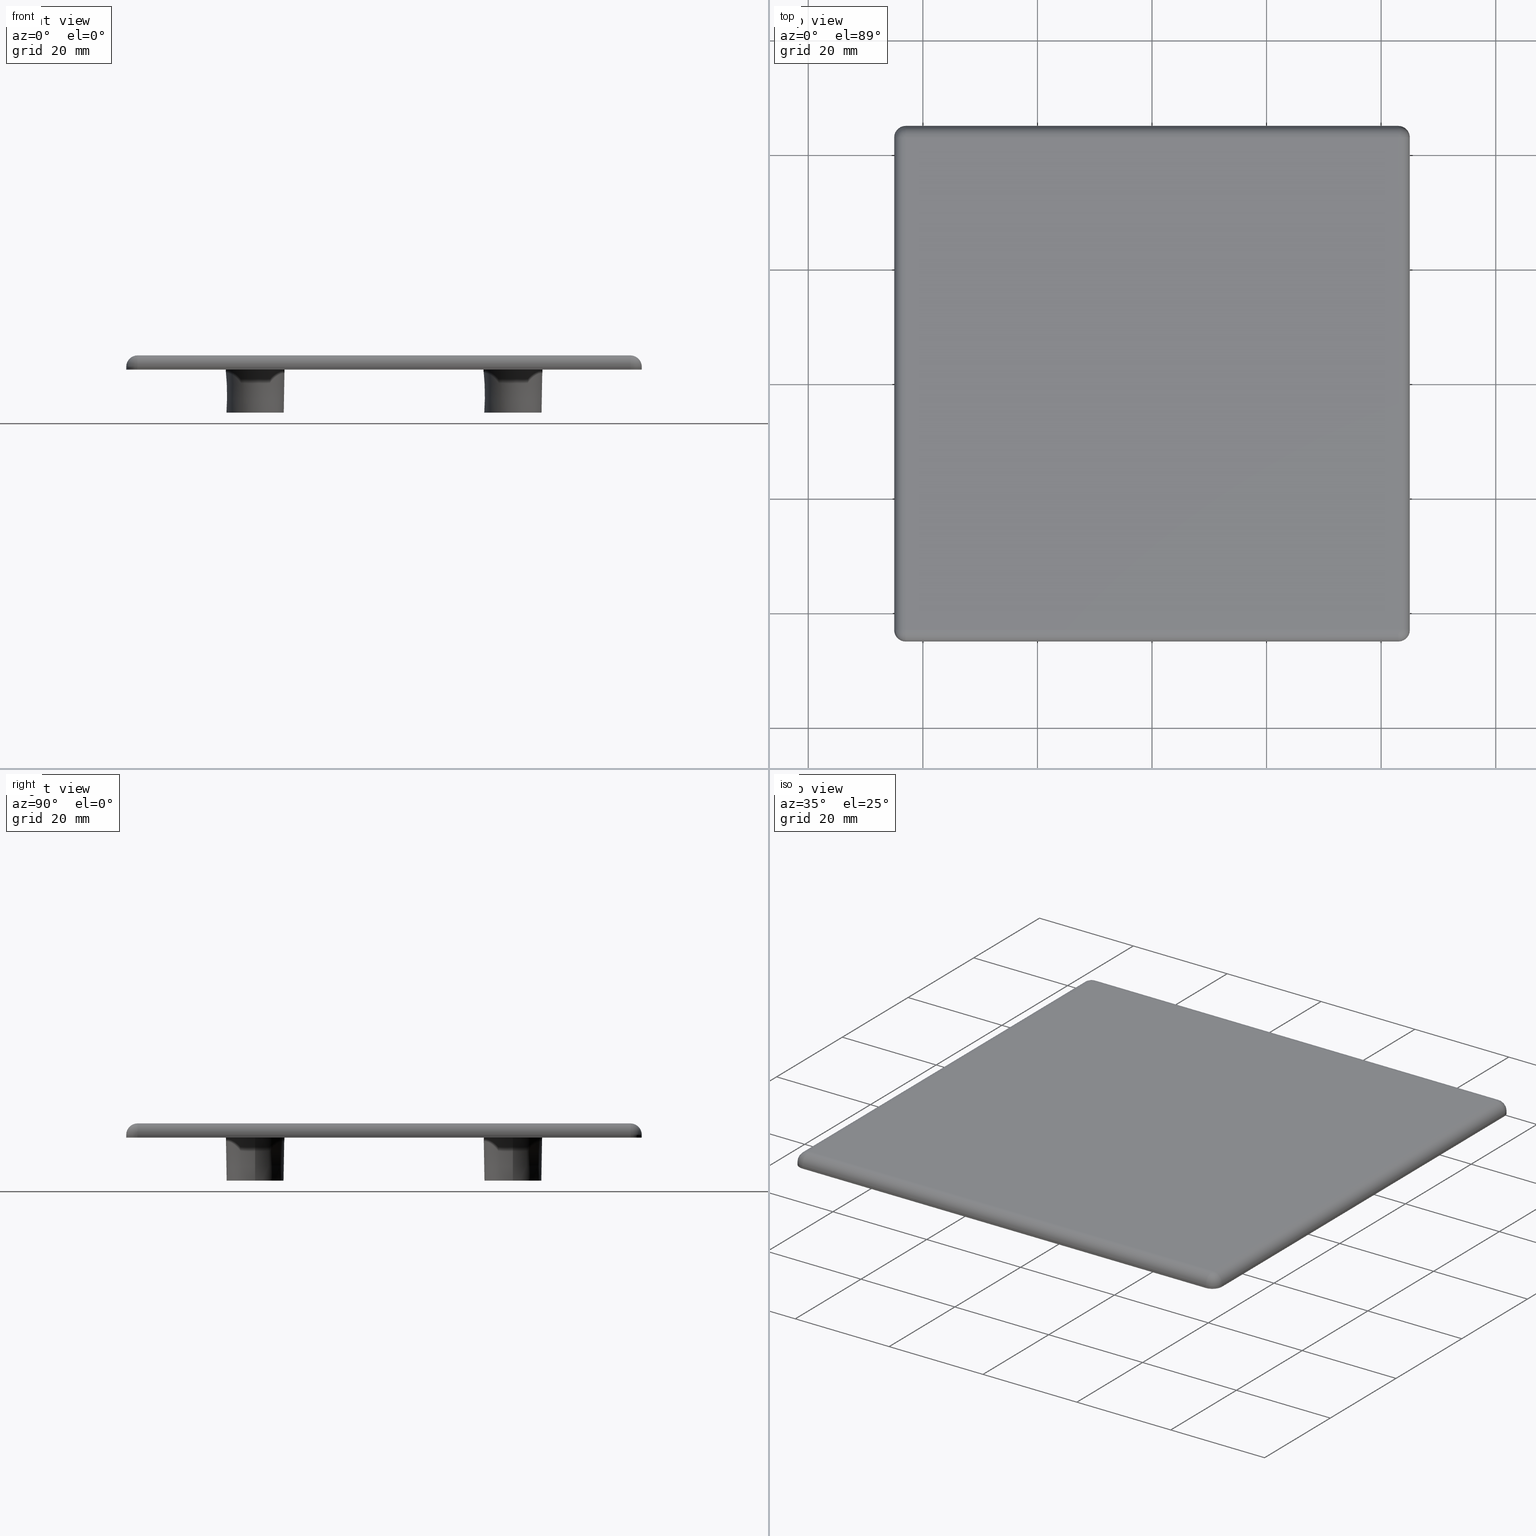
[diagram: canonical four-view strip — front | top / right | iso, engineering-drawing reading convention]
A machine part, canonical four-view strip (front | top / right | iso — engineering-drawing reading convention). The complete STEP part file that produces these views, byte-faithful:
ISO-10303-21;
HEADER;
/* Generated by software containing ST-Developer
 * from STEP Tools, Inc. (www.steptools.com) 
 */

FILE_DESCRIPTION(
/* description */ ('TAPPO 90X90 NERO - CAVA 10'),
/* implementation_level */ '2;1');

FILE_NAME(
/* name */ 
'Q:\\Catalogo\\2_Accessori Dierre\\Per Download Web e catalogo cartace
o\\CATALOGO TAPPI DI CHIUSURA\\PAGINA 98\\DTPTR0000075-.stp',
/* time_stamp */ '2019-07-16T09:31:55+02:00',
/* author */ ('fzagni'),
/* organization */ (''),
/* preprocessor_version */ 'ST-DEVELOPER v17.2',
/* originating_system */ 'Autodesk Inventor 2019',
/* authorisation */ '');

FILE_SCHEMA (('AUTOMOTIVE_DESIGN { 1 0 10303 214 3 1 1 }'));
ENDSEC;

DATA;
#10=MECHANICAL_DESIGN_GEOMETRIC_PRESENTATION_REPRESENTATION('',(#13),#853);
#11=SHAPE_REPRESENTATION_RELATIONSHIP('SRR','None',#860,#12);
#12=ADVANCED_BREP_SHAPE_REPRESENTATION('',(#14),#852);
#13=STYLED_ITEM('',(#869),#14);
#14=MANIFOLD_SOLID_BREP('Solido1',#471);
#15=CYLINDRICAL_SURFACE('',#532,2.);
#16=CYLINDRICAL_SURFACE('',#537,2.);
#17=CYLINDRICAL_SURFACE('',#542,2.);
#18=CYLINDRICAL_SURFACE('',#543,2.);
#19=CYLINDRICAL_SURFACE('',#548,2.);
#20=CYLINDRICAL_SURFACE('',#549,2.);
#21=CYLINDRICAL_SURFACE('',#550,2.);
#22=CYLINDRICAL_SURFACE('',#551,2.);
#23=SPHERICAL_SURFACE('',#528,2.);
#24=SPHERICAL_SURFACE('',#533,2.);
#25=SPHERICAL_SURFACE('',#538,2.);
#26=SPHERICAL_SURFACE('',#544,2.);
#27=FACE_BOUND('',#86,.T.);
#28=FACE_BOUND('',#90,.T.);
#29=FACE_BOUND('',#94,.T.);
#30=FACE_BOUND('',#96,.T.);
#31=FACE_BOUND('',#97,.T.);
#32=FACE_BOUND('',#98,.T.);
#33=FACE_BOUND('',#99,.T.);
#34=FACE_BOUND('',#105,.T.);
#35=PLANE('',#497);
#36=PLANE('',#504);
#37=PLANE('',#511);
#38=PLANE('',#512);
#39=PLANE('',#518);
#40=PLANE('',#519);
#41=PLANE('',#525);
#42=PLANE('',#526);
#43=PLANE('',#527);
#44=PLANE('',#552);
#45=PLANE('',#553);
#46=PLANE('',#554);
#47=PLANE('',#555);
#48=PLANE('',#556);
#49=FACE_OUTER_BOUND('',#83,.T.);
#50=FACE_OUTER_BOUND('',#84,.T.);
#51=FACE_OUTER_BOUND('',#85,.T.);
#52=FACE_OUTER_BOUND('',#87,.T.);
#53=FACE_OUTER_BOUND('',#88,.T.);
#54=FACE_OUTER_BOUND('',#89,.T.);
#55=FACE_OUTER_BOUND('',#91,.T.);
#56=FACE_OUTER_BOUND('',#92,.T.);
#57=FACE_OUTER_BOUND('',#93,.T.);
#58=FACE_OUTER_BOUND('',#95,.T.);
#59=FACE_OUTER_BOUND('',#100,.T.);
#60=FACE_OUTER_BOUND('',#101,.T.);
#61=FACE_OUTER_BOUND('',#102,.T.);
#62=FACE_OUTER_BOUND('',#103,.T.);
#63=FACE_OUTER_BOUND('',#104,.T.);
#64=FACE_OUTER_BOUND('',#106,.T.);
#65=FACE_OUTER_BOUND('',#107,.T.);
#66=FACE_OUTER_BOUND('',#108,.T.);
#67=FACE_OUTER_BOUND('',#109,.T.);
#68=FACE_OUTER_BOUND('',#110,.T.);
#69=FACE_OUTER_BOUND('',#111,.T.);
#70=FACE_OUTER_BOUND('',#112,.T.);
#71=FACE_OUTER_BOUND('',#113,.T.);
#72=FACE_OUTER_BOUND('',#114,.T.);
#73=FACE_OUTER_BOUND('',#115,.T.);
#74=FACE_OUTER_BOUND('',#116,.T.);
#75=FACE_OUTER_BOUND('',#117,.T.);
#76=FACE_OUTER_BOUND('',#118,.T.);
#77=FACE_OUTER_BOUND('',#119,.T.);
#78=FACE_OUTER_BOUND('',#120,.T.);
#79=FACE_OUTER_BOUND('',#121,.T.);
#80=FACE_OUTER_BOUND('',#122,.T.);
#81=FACE_OUTER_BOUND('',#123,.T.);
#82=FACE_OUTER_BOUND('',#124,.T.);
#83=EDGE_LOOP('',(#309,#310,#311,#312));
#84=EDGE_LOOP('',(#313,#314,#315,#316));
#85=EDGE_LOOP('',(#317));
#86=EDGE_LOOP('',(#318));
#87=EDGE_LOOP('',(#319,#320,#321,#322));
#88=EDGE_LOOP('',(#323,#324,#325,#326));
#89=EDGE_LOOP('',(#327));
#90=EDGE_LOOP('',(#328));
#91=EDGE_LOOP('',(#329,#330,#331,#332));
#92=EDGE_LOOP('',(#333,#334,#335,#336));
#93=EDGE_LOOP('',(#337));
#94=EDGE_LOOP('',(#338));
#95=EDGE_LOOP('',(#339,#340,#341,#342,#343,#344,#345,#346));
#96=EDGE_LOOP('',(#347));
#97=EDGE_LOOP('',(#348));
#98=EDGE_LOOP('',(#349));
#99=EDGE_LOOP('',(#350));
#100=EDGE_LOOP('',(#351));
#101=EDGE_LOOP('',(#352));
#102=EDGE_LOOP('',(#353,#354,#355,#356));
#103=EDGE_LOOP('',(#357,#358,#359,#360));
#104=EDGE_LOOP('',(#361));
#105=EDGE_LOOP('',(#362));
#106=EDGE_LOOP('',(#363));
#107=EDGE_LOOP('',(#364,#365,#366,#367));
#108=EDGE_LOOP('',(#368,#369,#370));
#109=EDGE_LOOP('',(#371,#372,#373,#374));
#110=EDGE_LOOP('',(#375,#376,#377));
#111=EDGE_LOOP('',(#378,#379,#380,#381));
#112=EDGE_LOOP('',(#382,#383,#384));
#113=EDGE_LOOP('',(#385,#386,#387,#388));
#114=EDGE_LOOP('',(#389,#390,#391,#392));
#115=EDGE_LOOP('',(#393,#394,#395));
#116=EDGE_LOOP('',(#396,#397,#398,#399));
#117=EDGE_LOOP('',(#400,#401,#402,#403));
#118=EDGE_LOOP('',(#404,#405,#406,#407));
#119=EDGE_LOOP('',(#408,#409,#410,#411));
#120=EDGE_LOOP('',(#412,#413,#414,#415));
#121=EDGE_LOOP('',(#416,#417,#418,#419));
#122=EDGE_LOOP('',(#420));
#123=EDGE_LOOP('',(#421,#422,#423,#424));
#124=EDGE_LOOP('',(#425,#426,#427,#428));
#125=LINE('',#724,#153);
#126=LINE('',#730,#154);
#127=LINE('',#737,#155);
#128=LINE('',#743,#156);
#129=LINE('',#750,#157);
#130=LINE('',#756,#158);
#131=LINE('',#764,#159);
#132=LINE('',#768,#160);
#133=LINE('',#772,#161);
#134=LINE('',#775,#162);
#135=LINE('',#784,#163);
#136=LINE('',#788,#164);
#137=LINE('',#795,#165);
#138=LINE('',#797,#166);
#139=LINE('',#799,#167);
#140=LINE('',#800,#168);
#141=LINE('',#808,#169);
#142=LINE('',#809,#170);
#143=LINE('',#817,#171);
#144=LINE('',#818,#172);
#145=LINE('',#826,#173);
#146=LINE('',#827,#174);
#147=LINE('',#829,#175);
#148=LINE('',#837,#176);
#149=LINE('',#838,#177);
#150=LINE('',#840,#178);
#151=LINE('',#842,#179);
#152=LINE('',#844,#180);
#153=VECTOR('',#563,4.2);
#154=VECTOR('',#570,5.);
#155=VECTOR('',#579,4.2);
#156=VECTOR('',#586,5.);
#157=VECTOR('',#595,4.2);
#158=VECTOR('',#602,5.);
#159=VECTOR('',#611,10.);
#160=VECTOR('',#614,10.);
#161=VECTOR('',#617,10.);
#162=VECTOR('',#620,10.);
#163=VECTOR('',#631,4.2);
#164=VECTOR('',#636,5.);
#165=VECTOR('',#645,10.);
#166=VECTOR('',#646,10.);
#167=VECTOR('',#647,10.);
#168=VECTOR('',#648,10.);
#169=VECTOR('',#659,10.);
#170=VECTOR('',#660,10.);
#171=VECTOR('',#671,10.);
#172=VECTOR('',#672,10.);
#173=VECTOR('',#683,10.);
#174=VECTOR('',#684,10.);
#175=VECTOR('',#687,10.);
#176=VECTOR('',#698,10.);
#177=VECTOR('',#699,10.);
#178=VECTOR('',#702,10.);
#179=VECTOR('',#705,10.);
#180=VECTOR('',#708,10.);
#181=CIRCLE('',#492,4.2);
#182=CIRCLE('',#493,4.06908701303837);
#183=CIRCLE('',#495,5.13091298696163);
#184=CIRCLE('',#496,5.);
#185=CIRCLE('',#499,4.2);
#186=CIRCLE('',#500,4.06908701303837);
#187=CIRCLE('',#502,5.13091298696163);
#188=CIRCLE('',#503,5.);
#189=CIRCLE('',#506,4.2);
#190=CIRCLE('',#507,4.06908701303837);
#191=CIRCLE('',#509,5.13091298696163);
#192=CIRCLE('',#510,5.);
#193=CIRCLE('',#513,2.);
#194=CIRCLE('',#514,2.);
#195=CIRCLE('',#515,2.);
#196=CIRCLE('',#516,2.);
#197=CIRCLE('',#517,5.13091298696163);
#198=CIRCLE('',#521,4.2);
#199=CIRCLE('',#522,4.06908701303837);
#200=CIRCLE('',#524,5.);
#201=CIRCLE('',#529,2.);
#202=CIRCLE('',#530,2.);
#203=CIRCLE('',#531,2.);
#204=CIRCLE('',#534,1.99999999999999);
#205=CIRCLE('',#535,2.);
#206=CIRCLE('',#536,2.);
#207=CIRCLE('',#539,2.00000000000001);
#208=CIRCLE('',#540,2.);
#209=CIRCLE('',#541,2.);
#210=CIRCLE('',#545,2.);
#211=CIRCLE('',#546,2.);
#212=CIRCLE('',#547,2.);
#213=VERTEX_POINT('',#721);
#214=VERTEX_POINT('',#723);
#215=VERTEX_POINT('',#727);
#216=VERTEX_POINT('',#729);
#217=VERTEX_POINT('',#734);
#218=VERTEX_POINT('',#736);
#219=VERTEX_POINT('',#740);
#220=VERTEX_POINT('',#742);
#221=VERTEX_POINT('',#747);
#222=VERTEX_POINT('',#749);
#223=VERTEX_POINT('',#753);
#224=VERTEX_POINT('',#755);
#225=VERTEX_POINT('',#760);
#226=VERTEX_POINT('',#761);
#227=VERTEX_POINT('',#763);
#228=VERTEX_POINT('',#765);
#229=VERTEX_POINT('',#767);
#230=VERTEX_POINT('',#769);
#231=VERTEX_POINT('',#771);
#232=VERTEX_POINT('',#773);
#233=VERTEX_POINT('',#776);
#234=VERTEX_POINT('',#781);
#235=VERTEX_POINT('',#783);
#236=VERTEX_POINT('',#787);
#237=VERTEX_POINT('',#793);
#238=VERTEX_POINT('',#794);
#239=VERTEX_POINT('',#796);
#240=VERTEX_POINT('',#798);
#241=VERTEX_POINT('',#802);
#242=VERTEX_POINT('',#804);
#243=VERTEX_POINT('',#811);
#244=VERTEX_POINT('',#813);
#245=VERTEX_POINT('',#820);
#246=VERTEX_POINT('',#822);
#247=VERTEX_POINT('',#831);
#248=VERTEX_POINT('',#833);
#249=EDGE_CURVE('',#213,#213,#181,.T.);
#250=EDGE_CURVE('',#213,#214,#125,.T.);
#251=EDGE_CURVE('',#214,#214,#182,.T.);
#252=EDGE_CURVE('',#215,#215,#183,.T.);
#253=EDGE_CURVE('',#215,#216,#126,.T.);
#254=EDGE_CURVE('',#216,#216,#184,.T.);
#255=EDGE_CURVE('',#217,#217,#185,.T.);
#256=EDGE_CURVE('',#217,#218,#127,.T.);
#257=EDGE_CURVE('',#218,#218,#186,.T.);
#258=EDGE_CURVE('',#219,#219,#187,.T.);
#259=EDGE_CURVE('',#219,#220,#128,.T.);
#260=EDGE_CURVE('',#220,#220,#188,.T.);
#261=EDGE_CURVE('',#221,#221,#189,.T.);
#262=EDGE_CURVE('',#221,#222,#129,.T.);
#263=EDGE_CURVE('',#222,#222,#190,.T.);
#264=EDGE_CURVE('',#223,#223,#191,.T.);
#265=EDGE_CURVE('',#223,#224,#130,.T.);
#266=EDGE_CURVE('',#224,#224,#192,.T.);
#267=EDGE_CURVE('',#225,#226,#193,.T.);
#268=EDGE_CURVE('',#225,#227,#131,.T.);
#269=EDGE_CURVE('',#228,#227,#194,.T.);
#270=EDGE_CURVE('',#228,#229,#132,.T.);
#271=EDGE_CURVE('',#230,#229,#195,.T.);
#272=EDGE_CURVE('',#230,#231,#133,.T.);
#273=EDGE_CURVE('',#232,#231,#196,.T.);
#274=EDGE_CURVE('',#232,#226,#134,.T.);
#275=EDGE_CURVE('',#233,#233,#197,.T.);
#276=EDGE_CURVE('',#234,#234,#198,.T.);
#277=EDGE_CURVE('',#234,#235,#135,.T.);
#278=EDGE_CURVE('',#235,#235,#199,.T.);
#279=EDGE_CURVE('',#233,#236,#136,.T.);
#280=EDGE_CURVE('',#236,#236,#200,.T.);
#281=EDGE_CURVE('',#237,#238,#137,.T.);
#282=EDGE_CURVE('',#239,#237,#138,.T.);
#283=EDGE_CURVE('',#240,#239,#139,.T.);
#284=EDGE_CURVE('',#238,#240,#140,.T.);
#285=EDGE_CURVE('',#241,#237,#201,.F.);
#286=EDGE_CURVE('',#242,#241,#202,.F.);
#287=EDGE_CURVE('',#237,#242,#203,.F.);
#288=EDGE_CURVE('',#226,#242,#141,.T.);
#289=EDGE_CURVE('',#241,#225,#142,.T.);
#290=EDGE_CURVE('',#243,#239,#204,.F.);
#291=EDGE_CURVE('',#244,#243,#205,.F.);
#292=EDGE_CURVE('',#239,#244,#206,.F.);
#293=EDGE_CURVE('',#231,#244,#143,.T.);
#294=EDGE_CURVE('',#243,#232,#144,.T.);
#295=EDGE_CURVE('',#245,#238,#207,.F.);
#296=EDGE_CURVE('',#246,#245,#208,.F.);
#297=EDGE_CURVE('',#238,#246,#209,.F.);
#298=EDGE_CURVE('',#227,#246,#145,.T.);
#299=EDGE_CURVE('',#245,#228,#146,.T.);
#300=EDGE_CURVE('',#246,#241,#147,.T.);
#301=EDGE_CURVE('',#247,#240,#210,.F.);
#302=EDGE_CURVE('',#248,#247,#211,.F.);
#303=EDGE_CURVE('',#240,#248,#212,.F.);
#304=EDGE_CURVE('',#229,#248,#148,.T.);
#305=EDGE_CURVE('',#247,#230,#149,.T.);
#306=EDGE_CURVE('',#248,#245,#150,.T.);
#307=EDGE_CURVE('',#244,#247,#151,.T.);
#308=EDGE_CURVE('',#242,#243,#152,.T.);
#309=ORIENTED_EDGE('',*,*,#249,.F.);
#310=ORIENTED_EDGE('',*,*,#250,.T.);
#311=ORIENTED_EDGE('',*,*,#251,.F.);
#312=ORIENTED_EDGE('',*,*,#250,.F.);
#313=ORIENTED_EDGE('',*,*,#252,.F.);
#314=ORIENTED_EDGE('',*,*,#253,.T.);
#315=ORIENTED_EDGE('',*,*,#254,.F.);
#316=ORIENTED_EDGE('',*,*,#253,.F.);
#317=ORIENTED_EDGE('',*,*,#254,.T.);
#318=ORIENTED_EDGE('',*,*,#249,.T.);
#319=ORIENTED_EDGE('',*,*,#255,.F.);
#320=ORIENTED_EDGE('',*,*,#256,.T.);
#321=ORIENTED_EDGE('',*,*,#257,.F.);
#322=ORIENTED_EDGE('',*,*,#256,.F.);
#323=ORIENTED_EDGE('',*,*,#258,.F.);
#324=ORIENTED_EDGE('',*,*,#259,.T.);
#325=ORIENTED_EDGE('',*,*,#260,.F.);
#326=ORIENTED_EDGE('',*,*,#259,.F.);
#327=ORIENTED_EDGE('',*,*,#260,.T.);
#328=ORIENTED_EDGE('',*,*,#255,.T.);
#329=ORIENTED_EDGE('',*,*,#261,.F.);
#330=ORIENTED_EDGE('',*,*,#262,.T.);
#331=ORIENTED_EDGE('',*,*,#263,.F.);
#332=ORIENTED_EDGE('',*,*,#262,.F.);
#333=ORIENTED_EDGE('',*,*,#264,.F.);
#334=ORIENTED_EDGE('',*,*,#265,.T.);
#335=ORIENTED_EDGE('',*,*,#266,.F.);
#336=ORIENTED_EDGE('',*,*,#265,.F.);
#337=ORIENTED_EDGE('',*,*,#266,.T.);
#338=ORIENTED_EDGE('',*,*,#261,.T.);
#339=ORIENTED_EDGE('',*,*,#267,.F.);
#340=ORIENTED_EDGE('',*,*,#268,.T.);
#341=ORIENTED_EDGE('',*,*,#269,.F.);
#342=ORIENTED_EDGE('',*,*,#270,.T.);
#343=ORIENTED_EDGE('',*,*,#271,.F.);
#344=ORIENTED_EDGE('',*,*,#272,.T.);
#345=ORIENTED_EDGE('',*,*,#273,.F.);
#346=ORIENTED_EDGE('',*,*,#274,.T.);
#347=ORIENTED_EDGE('',*,*,#275,.T.);
#348=ORIENTED_EDGE('',*,*,#264,.T.);
#349=ORIENTED_EDGE('',*,*,#258,.T.);
#350=ORIENTED_EDGE('',*,*,#252,.T.);
#351=ORIENTED_EDGE('',*,*,#263,.T.);
#352=ORIENTED_EDGE('',*,*,#257,.T.);
#353=ORIENTED_EDGE('',*,*,#276,.F.);
#354=ORIENTED_EDGE('',*,*,#277,.T.);
#355=ORIENTED_EDGE('',*,*,#278,.F.);
#356=ORIENTED_EDGE('',*,*,#277,.F.);
#357=ORIENTED_EDGE('',*,*,#275,.F.);
#358=ORIENTED_EDGE('',*,*,#279,.T.);
#359=ORIENTED_EDGE('',*,*,#280,.F.);
#360=ORIENTED_EDGE('',*,*,#279,.F.);
#361=ORIENTED_EDGE('',*,*,#280,.T.);
#362=ORIENTED_EDGE('',*,*,#276,.T.);
#363=ORIENTED_EDGE('',*,*,#251,.T.);
#364=ORIENTED_EDGE('',*,*,#281,.F.);
#365=ORIENTED_EDGE('',*,*,#282,.F.);
#366=ORIENTED_EDGE('',*,*,#283,.F.);
#367=ORIENTED_EDGE('',*,*,#284,.F.);
#368=ORIENTED_EDGE('',*,*,#285,.F.);
#369=ORIENTED_EDGE('',*,*,#286,.F.);
#370=ORIENTED_EDGE('',*,*,#287,.F.);
#371=ORIENTED_EDGE('',*,*,#267,.T.);
#372=ORIENTED_EDGE('',*,*,#288,.T.);
#373=ORIENTED_EDGE('',*,*,#286,.T.);
#374=ORIENTED_EDGE('',*,*,#289,.T.);
#375=ORIENTED_EDGE('',*,*,#290,.F.);
#376=ORIENTED_EDGE('',*,*,#291,.F.);
#377=ORIENTED_EDGE('',*,*,#292,.F.);
#378=ORIENTED_EDGE('',*,*,#273,.T.);
#379=ORIENTED_EDGE('',*,*,#293,.T.);
#380=ORIENTED_EDGE('',*,*,#291,.T.);
#381=ORIENTED_EDGE('',*,*,#294,.T.);
#382=ORIENTED_EDGE('',*,*,#295,.F.);
#383=ORIENTED_EDGE('',*,*,#296,.F.);
#384=ORIENTED_EDGE('',*,*,#297,.F.);
#385=ORIENTED_EDGE('',*,*,#269,.T.);
#386=ORIENTED_EDGE('',*,*,#298,.T.);
#387=ORIENTED_EDGE('',*,*,#296,.T.);
#388=ORIENTED_EDGE('',*,*,#299,.T.);
#389=ORIENTED_EDGE('',*,*,#285,.T.);
#390=ORIENTED_EDGE('',*,*,#281,.T.);
#391=ORIENTED_EDGE('',*,*,#297,.T.);
#392=ORIENTED_EDGE('',*,*,#300,.T.);
#393=ORIENTED_EDGE('',*,*,#301,.F.);
#394=ORIENTED_EDGE('',*,*,#302,.F.);
#395=ORIENTED_EDGE('',*,*,#303,.F.);
#396=ORIENTED_EDGE('',*,*,#271,.T.);
#397=ORIENTED_EDGE('',*,*,#304,.T.);
#398=ORIENTED_EDGE('',*,*,#302,.T.);
#399=ORIENTED_EDGE('',*,*,#305,.T.);
#400=ORIENTED_EDGE('',*,*,#295,.T.);
#401=ORIENTED_EDGE('',*,*,#284,.T.);
#402=ORIENTED_EDGE('',*,*,#303,.T.);
#403=ORIENTED_EDGE('',*,*,#306,.T.);
#404=ORIENTED_EDGE('',*,*,#301,.T.);
#405=ORIENTED_EDGE('',*,*,#283,.T.);
#406=ORIENTED_EDGE('',*,*,#292,.T.);
#407=ORIENTED_EDGE('',*,*,#307,.T.);
#408=ORIENTED_EDGE('',*,*,#290,.T.);
#409=ORIENTED_EDGE('',*,*,#282,.T.);
#410=ORIENTED_EDGE('',*,*,#287,.T.);
#411=ORIENTED_EDGE('',*,*,#308,.T.);
#412=ORIENTED_EDGE('',*,*,#289,.F.);
#413=ORIENTED_EDGE('',*,*,#300,.F.);
#414=ORIENTED_EDGE('',*,*,#298,.F.);
#415=ORIENTED_EDGE('',*,*,#268,.F.);
#416=ORIENTED_EDGE('',*,*,#299,.F.);
#417=ORIENTED_EDGE('',*,*,#306,.F.);
#418=ORIENTED_EDGE('',*,*,#304,.F.);
#419=ORIENTED_EDGE('',*,*,#270,.F.);
#420=ORIENTED_EDGE('',*,*,#278,.T.);
#421=ORIENTED_EDGE('',*,*,#293,.F.);
#422=ORIENTED_EDGE('',*,*,#272,.F.);
#423=ORIENTED_EDGE('',*,*,#305,.F.);
#424=ORIENTED_EDGE('',*,*,#307,.F.);
#425=ORIENTED_EDGE('',*,*,#288,.F.);
#426=ORIENTED_EDGE('',*,*,#274,.F.);
#427=ORIENTED_EDGE('',*,*,#294,.F.);
#428=ORIENTED_EDGE('',*,*,#308,.F.);
#429=CONICAL_SURFACE('',#491,4.2,0.0174532925199433);
#430=CONICAL_SURFACE('',#494,5.,0.0174532925199433);
#431=CONICAL_SURFACE('',#498,4.2,0.0174532925199433);
#432=CONICAL_SURFACE('',#501,5.,0.0174532925199433);
#433=CONICAL_SURFACE('',#505,4.2,0.0174532925199433);
#434=CONICAL_SURFACE('',#508,5.,0.0174532925199433);
#435=CONICAL_SURFACE('',#520,4.2,0.0174532925199433);
#436=CONICAL_SURFACE('',#523,5.,0.0174532925199433);
#437=ADVANCED_FACE('',(#49),#429,.F.);
#438=ADVANCED_FACE('',(#50),#430,.T.);
#439=ADVANCED_FACE('',(#51,#27),#35,.F.);
#440=ADVANCED_FACE('',(#52),#431,.F.);
#441=ADVANCED_FACE('',(#53),#432,.T.);
#442=ADVANCED_FACE('',(#54,#28),#36,.F.);
#443=ADVANCED_FACE('',(#55),#433,.F.);
#444=ADVANCED_FACE('',(#56),#434,.T.);
#445=ADVANCED_FACE('',(#57,#29),#37,.F.);
#446=ADVANCED_FACE('',(#58,#30,#31,#32,#33),#38,.F.);
#447=ADVANCED_FACE('',(#59),#39,.F.);
#448=ADVANCED_FACE('',(#60),#40,.F.);
#449=ADVANCED_FACE('',(#61),#435,.F.);
#450=ADVANCED_FACE('',(#62),#436,.T.);
#451=ADVANCED_FACE('',(#63,#34),#41,.F.);
#452=ADVANCED_FACE('',(#64),#42,.F.);
#453=ADVANCED_FACE('',(#65),#43,.T.);
#454=ADVANCED_FACE('',(#66),#23,.T.);
#455=ADVANCED_FACE('',(#67),#15,.T.);
#456=ADVANCED_FACE('',(#68),#24,.T.);
#457=ADVANCED_FACE('',(#69),#16,.T.);
#458=ADVANCED_FACE('',(#70),#25,.T.);
#459=ADVANCED_FACE('',(#71),#17,.T.);
#460=ADVANCED_FACE('',(#72),#18,.T.);
#461=ADVANCED_FACE('',(#73),#26,.T.);
#462=ADVANCED_FACE('',(#74),#19,.T.);
#463=ADVANCED_FACE('',(#75),#20,.T.);
#464=ADVANCED_FACE('',(#76),#21,.T.);
#465=ADVANCED_FACE('',(#77),#22,.T.);
#466=ADVANCED_FACE('',(#78),#44,.T.);
#467=ADVANCED_FACE('',(#79),#45,.T.);
#468=ADVANCED_FACE('',(#80),#46,.F.);
#469=ADVANCED_FACE('',(#81),#47,.T.);
#470=ADVANCED_FACE('',(#82),#48,.T.);
#471=CLOSED_SHELL('',(#437,#438,#439,#440,#441,#442,#443,#444,#445,#446,
#447,#448,#449,#450,#451,#452,#453,#454,#455,#456,#457,#458,#459,#460,#461,
#462,#463,#464,#465,#466,#467,#468,#469,#470));
#472=DERIVED_UNIT_ELEMENT(#474,1.);
#473=DERIVED_UNIT_ELEMENT(#855,3.);
#474=(
MASS_UNIT()
NAMED_UNIT(*)
SI_UNIT($,.GRAM.)
);
#475=DERIVED_UNIT((#472,#473));
#476=MEASURE_REPRESENTATION_ITEM('density measure',
POSITIVE_RATIO_MEASURE(1.13),#475);
#477=PROPERTY_DEFINITION_REPRESENTATION(#482,#479);
#478=PROPERTY_DEFINITION_REPRESENTATION(#483,#480);
#479=REPRESENTATION('material name',(#481),#852);
#480=REPRESENTATION('density',(#476),#852);
#481=DESCRIPTIVE_REPRESENTATION_ITEM('NYLON','NYLON');
#482=PROPERTY_DEFINITION('material property','material name',#862);
#483=PROPERTY_DEFINITION('material property','density of part',#862);
#484=DATE_TIME_ROLE('creation_date');
#485=APPLIED_DATE_AND_TIME_ASSIGNMENT(#486,#484,(#862));
#486=DATE_AND_TIME(#487,#488);
#487=CALENDAR_DATE(2018,4,12);
#488=LOCAL_TIME(13,35,58.,#489);
#489=COORDINATED_UNIVERSAL_TIME_OFFSET(0,0,.BEHIND.);
#490=AXIS2_PLACEMENT_3D('placement',#719,#557,#558);
#491=AXIS2_PLACEMENT_3D('',#720,#559,#560);
#492=AXIS2_PLACEMENT_3D('',#722,#561,#562);
#493=AXIS2_PLACEMENT_3D('',#725,#564,#565);
#494=AXIS2_PLACEMENT_3D('',#726,#566,#567);
#495=AXIS2_PLACEMENT_3D('',#728,#568,#569);
#496=AXIS2_PLACEMENT_3D('',#731,#571,#572);
#497=AXIS2_PLACEMENT_3D('',#732,#573,#574);
#498=AXIS2_PLACEMENT_3D('',#733,#575,#576);
#499=AXIS2_PLACEMENT_3D('',#735,#577,#578);
#500=AXIS2_PLACEMENT_3D('',#738,#580,#581);
#501=AXIS2_PLACEMENT_3D('',#739,#582,#583);
#502=AXIS2_PLACEMENT_3D('',#741,#584,#585);
#503=AXIS2_PLACEMENT_3D('',#744,#587,#588);
#504=AXIS2_PLACEMENT_3D('',#745,#589,#590);
#505=AXIS2_PLACEMENT_3D('',#746,#591,#592);
#506=AXIS2_PLACEMENT_3D('',#748,#593,#594);
#507=AXIS2_PLACEMENT_3D('',#751,#596,#597);
#508=AXIS2_PLACEMENT_3D('',#752,#598,#599);
#509=AXIS2_PLACEMENT_3D('',#754,#600,#601);
#510=AXIS2_PLACEMENT_3D('',#757,#603,#604);
#511=AXIS2_PLACEMENT_3D('',#758,#605,#606);
#512=AXIS2_PLACEMENT_3D('',#759,#607,#608);
#513=AXIS2_PLACEMENT_3D('',#762,#609,#610);
#514=AXIS2_PLACEMENT_3D('',#766,#612,#613);
#515=AXIS2_PLACEMENT_3D('',#770,#615,#616);
#516=AXIS2_PLACEMENT_3D('',#774,#618,#619);
#517=AXIS2_PLACEMENT_3D('',#777,#621,#622);
#518=AXIS2_PLACEMENT_3D('',#778,#623,#624);
#519=AXIS2_PLACEMENT_3D('',#779,#625,#626);
#520=AXIS2_PLACEMENT_3D('',#780,#627,#628);
#521=AXIS2_PLACEMENT_3D('',#782,#629,#630);
#522=AXIS2_PLACEMENT_3D('',#785,#632,#633);
#523=AXIS2_PLACEMENT_3D('',#786,#634,#635);
#524=AXIS2_PLACEMENT_3D('',#789,#637,#638);
#525=AXIS2_PLACEMENT_3D('',#790,#639,#640);
#526=AXIS2_PLACEMENT_3D('',#791,#641,#642);
#527=AXIS2_PLACEMENT_3D('',#792,#643,#644);
#528=AXIS2_PLACEMENT_3D('',#801,#649,#650);
#529=AXIS2_PLACEMENT_3D('',#803,#651,#652);
#530=AXIS2_PLACEMENT_3D('',#805,#653,#654);
#531=AXIS2_PLACEMENT_3D('',#806,#655,#656);
#532=AXIS2_PLACEMENT_3D('',#807,#657,#658);
#533=AXIS2_PLACEMENT_3D('',#810,#661,#662);
#534=AXIS2_PLACEMENT_3D('',#812,#663,#664);
#535=AXIS2_PLACEMENT_3D('',#814,#665,#666);
#536=AXIS2_PLACEMENT_3D('',#815,#667,#668);
#537=AXIS2_PLACEMENT_3D('',#816,#669,#670);
#538=AXIS2_PLACEMENT_3D('',#819,#673,#674);
#539=AXIS2_PLACEMENT_3D('',#821,#675,#676);
#540=AXIS2_PLACEMENT_3D('',#823,#677,#678);
#541=AXIS2_PLACEMENT_3D('',#824,#679,#680);
#542=AXIS2_PLACEMENT_3D('',#825,#681,#682);
#543=AXIS2_PLACEMENT_3D('',#828,#685,#686);
#544=AXIS2_PLACEMENT_3D('',#830,#688,#689);
#545=AXIS2_PLACEMENT_3D('',#832,#690,#691);
#546=AXIS2_PLACEMENT_3D('',#834,#692,#693);
#547=AXIS2_PLACEMENT_3D('',#835,#694,#695);
#548=AXIS2_PLACEMENT_3D('',#836,#696,#697);
#549=AXIS2_PLACEMENT_3D('',#839,#700,#701);
#550=AXIS2_PLACEMENT_3D('',#841,#703,#704);
#551=AXIS2_PLACEMENT_3D('',#843,#706,#707);
#552=AXIS2_PLACEMENT_3D('',#845,#709,#710);
#553=AXIS2_PLACEMENT_3D('',#846,#711,#712);
#554=AXIS2_PLACEMENT_3D('',#847,#713,#714);
#555=AXIS2_PLACEMENT_3D('',#848,#715,#716);
#556=AXIS2_PLACEMENT_3D('',#849,#717,#718);
#557=DIRECTION('axis',(0.,0.,1.));
#558=DIRECTION('refdir',(1.,0.,0.));
#559=DIRECTION('center_axis',(0.,0.,-1.));
#560=DIRECTION('ref_axis',(-1.,0.,0.));
#561=DIRECTION('center_axis',(0.,0.,1.));
#562=DIRECTION('ref_axis',(-1.,0.,0.));
#563=DIRECTION('',(-0.0174524064372835,-2.13730336808379E-18,0.999847695156391));
#564=DIRECTION('center_axis',(0.,0.,-1.));
#565=DIRECTION('ref_axis',(-1.,0.,0.));
#566=DIRECTION('center_axis',(0.,0.,1.));
#567=DIRECTION('ref_axis',(-1.,0.,0.));
#568=DIRECTION('center_axis',(0.,0.,1.));
#569=DIRECTION('ref_axis',(-1.,0.,0.));
#570=DIRECTION('',(-0.0174524064372835,-2.13730336808379E-18,-0.999847695156391));
#571=DIRECTION('center_axis',(0.,0.,-1.));
#572=DIRECTION('ref_axis',(-1.,0.,0.));
#573=DIRECTION('center_axis',(0.,0.,1.));
#574=DIRECTION('ref_axis',(1.,0.,0.));
#575=DIRECTION('center_axis',(0.,0.,-1.));
#576=DIRECTION('ref_axis',(-1.,0.,0.));
#577=DIRECTION('center_axis',(0.,0.,1.));
#578=DIRECTION('ref_axis',(-1.,0.,0.));
#579=DIRECTION('',(-0.0174524064372835,-2.13730336808379E-18,0.999847695156391));
#580=DIRECTION('center_axis',(0.,0.,-1.));
#581=DIRECTION('ref_axis',(-1.,0.,0.));
#582=DIRECTION('center_axis',(0.,0.,1.));
#583=DIRECTION('ref_axis',(-1.,0.,0.));
#584=DIRECTION('center_axis',(0.,0.,1.));
#585=DIRECTION('ref_axis',(-1.,0.,0.));
#586=DIRECTION('',(-0.0174524064372835,-2.13730336808379E-18,-0.999847695156391));
#587=DIRECTION('center_axis',(0.,0.,-1.));
#588=DIRECTION('ref_axis',(-1.,0.,0.));
#589=DIRECTION('center_axis',(0.,0.,1.));
#590=DIRECTION('ref_axis',(1.,0.,0.));
#591=DIRECTION('center_axis',(0.,0.,-1.));
#592=DIRECTION('ref_axis',(-1.,0.,0.));
#593=DIRECTION('center_axis',(0.,0.,1.));
#594=DIRECTION('ref_axis',(-1.,0.,0.));
#595=DIRECTION('',(-0.0174524064372835,-2.13730336808379E-18,0.999847695156391));
#596=DIRECTION('center_axis',(0.,0.,-1.));
#597=DIRECTION('ref_axis',(-1.,0.,0.));
#598=DIRECTION('center_axis',(0.,0.,1.));
#599=DIRECTION('ref_axis',(-1.,0.,0.));
#600=DIRECTION('center_axis',(0.,0.,1.));
#601=DIRECTION('ref_axis',(-1.,0.,0.));
#602=DIRECTION('',(-0.0174524064372835,-2.13730336808379E-18,-0.999847695156391));
#603=DIRECTION('center_axis',(0.,0.,-1.));
#604=DIRECTION('ref_axis',(-1.,0.,0.));
#605=DIRECTION('center_axis',(0.,0.,1.));
#606=DIRECTION('ref_axis',(1.,0.,0.));
#607=DIRECTION('center_axis',(0.,0.,1.));
#608=DIRECTION('ref_axis',(1.,0.,0.));
#609=DIRECTION('center_axis',(0.,0.,1.));
#610=DIRECTION('ref_axis',(0.707106781186551,0.707106781186544,0.));
#611=DIRECTION('',(-9.86864910777917E-17,-1.,0.));
#612=DIRECTION('center_axis',(0.,0.,1.));
#613=DIRECTION('ref_axis',(0.707106781186548,-0.707106781186548,0.));
#614=DIRECTION('',(-1.,-1.97372982155583E-16,0.));
#615=DIRECTION('center_axis',(0.,0.,1.));
#616=DIRECTION('ref_axis',(-0.707106781186548,-0.707106781186548,0.));
#617=DIRECTION('',(9.86864910777917E-17,1.,0.));
#618=DIRECTION('center_axis',(0.,0.,1.));
#619=DIRECTION('ref_axis',(-0.707106781186548,0.707106781186548,0.));
#620=DIRECTION('',(1.,1.97372982155583E-16,0.));
#621=DIRECTION('center_axis',(0.,0.,1.));
#622=DIRECTION('ref_axis',(-1.,0.,0.));
#623=DIRECTION('center_axis',(0.,0.,1.));
#624=DIRECTION('ref_axis',(1.,0.,0.));
#625=DIRECTION('center_axis',(0.,0.,1.));
#626=DIRECTION('ref_axis',(1.,0.,0.));
#627=DIRECTION('center_axis',(0.,0.,-1.));
#628=DIRECTION('ref_axis',(-1.,0.,0.));
#629=DIRECTION('center_axis',(0.,0.,1.));
#630=DIRECTION('ref_axis',(-1.,0.,0.));
#631=DIRECTION('',(-0.0174524064372835,-2.13730336808379E-18,0.999847695156391));
#632=DIRECTION('center_axis',(0.,0.,-1.));
#633=DIRECTION('ref_axis',(-1.,0.,0.));
#634=DIRECTION('center_axis',(0.,0.,1.));
#635=DIRECTION('ref_axis',(-1.,0.,0.));
#636=DIRECTION('',(-0.0174524064372835,-2.13730336808379E-18,-0.999847695156391));
#637=DIRECTION('center_axis',(0.,0.,-1.));
#638=DIRECTION('ref_axis',(-1.,0.,0.));
#639=DIRECTION('center_axis',(0.,0.,1.));
#640=DIRECTION('ref_axis',(1.,0.,0.));
#641=DIRECTION('center_axis',(0.,0.,1.));
#642=DIRECTION('ref_axis',(1.,0.,0.));
#643=DIRECTION('center_axis',(0.,0.,1.));
#644=DIRECTION('ref_axis',(1.,0.,0.));
#645=DIRECTION('',(-9.86864910777917E-17,-1.,0.));
#646=DIRECTION('',(1.,1.97372982155583E-16,0.));
#647=DIRECTION('',(9.86864910777917E-17,1.,0.));
#648=DIRECTION('',(-1.,-1.97372982155583E-16,0.));
#649=DIRECTION('center_axis',(0.408248290463866,0.408248290463859,-0.816496580927726));
#650=DIRECTION('ref_axis',(0.57735026918963,0.577350269189623,0.577350269189625));
#651=DIRECTION('center_axis',(0.,1.,0.));
#652=DIRECTION('ref_axis',(1.,0.,0.));
#653=DIRECTION('center_axis',(0.,0.,1.));
#654=DIRECTION('ref_axis',(0.,1.,0.));
#655=DIRECTION('center_axis',(1.,4.44089209850064E-15,0.));
#656=DIRECTION('ref_axis',(0.,0.,1.));
#657=DIRECTION('center_axis',(0.,0.,1.));
#658=DIRECTION('ref_axis',(0.707106781186551,0.707106781186544,0.));
#659=DIRECTION('',(0.,0.,1.));
#660=DIRECTION('',(0.,0.,-1.));
#661=DIRECTION('center_axis',(-0.816496580927726,-0.408248290463863,-0.408248290463862));
#662=DIRECTION('ref_axis',(-0.577350269189625,0.577350269189629,0.577350269189624));
#663=DIRECTION('center_axis',(-1.,0.,0.));
#664=DIRECTION('ref_axis',(0.,1.,0.));
#665=DIRECTION('center_axis',(0.,0.,1.));
#666=DIRECTION('ref_axis',(-1.,0.,0.));
#667=DIRECTION('center_axis',(0.,1.,0.));
#668=DIRECTION('ref_axis',(0.,0.,1.));
#669=DIRECTION('center_axis',(0.,0.,1.));
#670=DIRECTION('ref_axis',(-0.707106781186548,0.707106781186548,0.));
#671=DIRECTION('',(0.,0.,1.));
#672=DIRECTION('',(0.,0.,-1.));
#673=DIRECTION('center_axis',(-0.816496580927726,-0.408248290463863,0.408248290463862));
#674=DIRECTION('ref_axis',(0.577350269189626,-0.577350269189626,0.577350269189626));
#675=DIRECTION('center_axis',(1.,0.,0.));
#676=DIRECTION('ref_axis',(0.,-1.,0.));
#677=DIRECTION('center_axis',(0.,0.,1.));
#678=DIRECTION('ref_axis',(1.,0.,0.));
#679=DIRECTION('center_axis',(-4.44089209850062E-15,-1.,0.));
#680=DIRECTION('ref_axis',(0.,0.,1.));
#681=DIRECTION('center_axis',(0.,0.,1.));
#682=DIRECTION('ref_axis',(0.707106781186548,-0.707106781186548,0.));
#683=DIRECTION('',(0.,0.,1.));
#684=DIRECTION('',(0.,0.,-1.));
#685=DIRECTION('center_axis',(9.86864910777917E-17,1.,0.));
#686=DIRECTION('ref_axis',(0.707106781186549,0.,0.707106781186546));
#687=DIRECTION('',(9.86864910777917E-17,1.,0.));
#688=DIRECTION('center_axis',(-0.408248290463866,-0.408248290463859,-0.816496580927726));
#689=DIRECTION('ref_axis',(-0.57735026918963,-0.577350269189623,0.577350269189625));
#690=DIRECTION('center_axis',(0.,-1.,4.44089209850063E-15));
#691=DIRECTION('ref_axis',(-1.,0.,0.));
#692=DIRECTION('center_axis',(0.,0.,1.));
#693=DIRECTION('ref_axis',(0.,-1.,0.));
#694=DIRECTION('center_axis',(-1.,0.,0.));
#695=DIRECTION('ref_axis',(0.,0.,1.));
#696=DIRECTION('center_axis',(0.,0.,1.));
#697=DIRECTION('ref_axis',(-0.707106781186548,-0.707106781186548,0.));
#698=DIRECTION('',(0.,0.,1.));
#699=DIRECTION('',(0.,0.,-1.));
#700=DIRECTION('center_axis',(1.,1.97372982155583E-16,0.));
#701=DIRECTION('ref_axis',(0.,-0.707106781186549,0.707106781186546));
#702=DIRECTION('',(1.,1.97372982155583E-16,0.));
#703=DIRECTION('center_axis',(-9.86864910777917E-17,-1.,0.));
#704=DIRECTION('ref_axis',(-0.707106781186546,0.,0.707106781186549));
#705=DIRECTION('',(-9.86864910777917E-17,-1.,0.));
#706=DIRECTION('center_axis',(-1.,-1.97372982155583E-16,0.));
#707=DIRECTION('ref_axis',(0.,0.707106781186546,0.707106781186549));
#708=DIRECTION('',(-1.,-1.97372982155583E-16,0.));
#709=DIRECTION('center_axis',(1.,-9.86864910777917E-17,0.));
#710=DIRECTION('ref_axis',(9.86864910777917E-17,1.,0.));
#711=DIRECTION('center_axis',(1.97372982155583E-16,-1.,0.));
#712=DIRECTION('ref_axis',(1.,1.97372982155583E-16,0.));
#713=DIRECTION('center_axis',(0.,0.,1.));
#714=DIRECTION('ref_axis',(1.,0.,0.));
#715=DIRECTION('center_axis',(-1.,9.86864910777917E-17,0.));
#716=DIRECTION('ref_axis',(-9.86864910777917E-17,-1.,0.));
#717=DIRECTION('center_axis',(-1.97372982155583E-16,1.,0.));
#718=DIRECTION('ref_axis',(-1.,-1.97372982155583E-16,0.));
#719=CARTESIAN_POINT('',(0.,0.,0.));
#720=CARTESIAN_POINT('Origin',(22.5,-22.5,-7.5));
#721=CARTESIAN_POINT('',(26.7,-22.5,-7.5));
#722=CARTESIAN_POINT('Origin',(22.5,-22.5,-7.5));
#723=CARTESIAN_POINT('',(26.5690870130384,-22.5,0.));
#724=CARTESIAN_POINT('',(26.7,-22.5,-7.5));
#725=CARTESIAN_POINT('Origin',(22.5,-22.5,0.));
#726=CARTESIAN_POINT('Origin',(22.5,-22.5,-7.5));
#727=CARTESIAN_POINT('',(27.6309129869616,-22.5,0.));
#728=CARTESIAN_POINT('Origin',(22.5,-22.5,0.));
#729=CARTESIAN_POINT('',(27.5,-22.5,-7.5));
#730=CARTESIAN_POINT('',(27.5,-22.5,-7.5));
#731=CARTESIAN_POINT('Origin',(22.5,-22.5,-7.5));
#732=CARTESIAN_POINT('Origin',(22.5,-22.5,-7.5));
#733=CARTESIAN_POINT('Origin',(-22.5,-22.5,-7.5));
#734=CARTESIAN_POINT('',(-18.3,-22.5,-7.5));
#735=CARTESIAN_POINT('Origin',(-22.5,-22.5,-7.5));
#736=CARTESIAN_POINT('',(-18.4309129869616,-22.5,0.));
#737=CARTESIAN_POINT('',(-18.3,-22.5,-7.5));
#738=CARTESIAN_POINT('Origin',(-22.5,-22.5,0.));
#739=CARTESIAN_POINT('Origin',(-22.5,-22.5,-7.5));
#740=CARTESIAN_POINT('',(-17.3690870130384,-22.5,0.));
#741=CARTESIAN_POINT('Origin',(-22.5,-22.5,0.));
#742=CARTESIAN_POINT('',(-17.5,-22.5,-7.5));
#743=CARTESIAN_POINT('',(-17.5,-22.5,-7.5));
#744=CARTESIAN_POINT('Origin',(-22.5,-22.5,-7.5));
#745=CARTESIAN_POINT('Origin',(-22.5,-22.5,-7.5));
#746=CARTESIAN_POINT('Origin',(22.5,22.5,-7.5));
#747=CARTESIAN_POINT('',(26.7,22.5,-7.5));
#748=CARTESIAN_POINT('Origin',(22.5,22.5,-7.5));
#749=CARTESIAN_POINT('',(26.5690870130384,22.5,0.));
#750=CARTESIAN_POINT('',(26.7,22.5,-7.5));
#751=CARTESIAN_POINT('Origin',(22.5,22.5,0.));
#752=CARTESIAN_POINT('Origin',(22.5,22.5,-7.5));
#753=CARTESIAN_POINT('',(27.6309129869616,22.5,0.));
#754=CARTESIAN_POINT('Origin',(22.5,22.5,0.));
#755=CARTESIAN_POINT('',(27.5,22.5,-7.5));
#756=CARTESIAN_POINT('',(27.5,22.5,-7.5));
#757=CARTESIAN_POINT('Origin',(22.5,22.5,-7.5));
#758=CARTESIAN_POINT('Origin',(22.5,22.5,-7.5));
#759=CARTESIAN_POINT('Origin',(2.96059473233375E-15,-3.70074341541719E-15,
0.));
#760=CARTESIAN_POINT('',(45.,43.,0.));
#761=CARTESIAN_POINT('',(43.,45.,0.));
#762=CARTESIAN_POINT('Origin',(43.,43.,0.));
#763=CARTESIAN_POINT('',(45.,-43.,0.));
#764=CARTESIAN_POINT('',(45.,45.,0.));
#765=CARTESIAN_POINT('',(43.,-45.,0.));
#766=CARTESIAN_POINT('Origin',(43.,-43.,0.));
#767=CARTESIAN_POINT('',(-43.,-45.,0.));
#768=CARTESIAN_POINT('',(45.,-45.,0.));
#769=CARTESIAN_POINT('',(-45.,-43.,0.));
#770=CARTESIAN_POINT('Origin',(-43.,-43.,0.));
#771=CARTESIAN_POINT('',(-45.,43.,0.));
#772=CARTESIAN_POINT('',(-45.,-45.,0.));
#773=CARTESIAN_POINT('',(-43.,45.,0.));
#774=CARTESIAN_POINT('Origin',(-43.,43.,0.));
#775=CARTESIAN_POINT('',(-45.,45.,0.));
#776=CARTESIAN_POINT('',(-17.3690870130384,22.5,0.));
#777=CARTESIAN_POINT('Origin',(-22.5,22.5,0.));
#778=CARTESIAN_POINT('Origin',(2.96059473233375E-15,-3.70074341541719E-15,
0.));
#779=CARTESIAN_POINT('Origin',(2.96059473233375E-15,-3.70074341541719E-15,
0.));
#780=CARTESIAN_POINT('Origin',(-22.5,22.5,-7.5));
#781=CARTESIAN_POINT('',(-18.3,22.5,-7.5));
#782=CARTESIAN_POINT('Origin',(-22.5,22.5,-7.5));
#783=CARTESIAN_POINT('',(-18.4309129869616,22.5,0.));
#784=CARTESIAN_POINT('',(-18.3,22.5,-7.5));
#785=CARTESIAN_POINT('Origin',(-22.5,22.5,0.));
#786=CARTESIAN_POINT('Origin',(-22.5,22.5,-7.5));
#787=CARTESIAN_POINT('',(-17.5,22.5,-7.5));
#788=CARTESIAN_POINT('',(-17.5,22.5,-7.5));
#789=CARTESIAN_POINT('Origin',(-22.5,22.5,-7.5));
#790=CARTESIAN_POINT('Origin',(-22.5,22.5,-7.5));
#791=CARTESIAN_POINT('Origin',(2.96059473233375E-15,-3.70074341541719E-15,
0.));
#792=CARTESIAN_POINT('Origin',(0.,0.,2.5));
#793=CARTESIAN_POINT('',(43.,43.,2.5));
#794=CARTESIAN_POINT('',(43.,-43.,2.5));
#795=CARTESIAN_POINT('',(43.,-22.5,2.5));
#796=CARTESIAN_POINT('',(-43.,43.,2.5));
#797=CARTESIAN_POINT('',(22.5,43.,2.5));
#798=CARTESIAN_POINT('',(-43.,-43.,2.5));
#799=CARTESIAN_POINT('',(-43.,22.5,2.5));
#800=CARTESIAN_POINT('',(-22.5,-43.,2.5));
#801=CARTESIAN_POINT('Origin',(43.,43.,0.5));
#802=CARTESIAN_POINT('',(45.,43.,0.5));
#803=CARTESIAN_POINT('Origin',(43.,43.,0.5));
#804=CARTESIAN_POINT('',(43.,45.,0.5));
#805=CARTESIAN_POINT('Origin',(43.,43.,0.5));
#806=CARTESIAN_POINT('Origin',(43.,43.,0.5));
#807=CARTESIAN_POINT('Origin',(43.,43.,0.));
#808=CARTESIAN_POINT('',(43.,45.,0.));
#809=CARTESIAN_POINT('',(45.,43.,0.));
#810=CARTESIAN_POINT('Origin',(-43.,43.,0.5));
#811=CARTESIAN_POINT('',(-43.,45.,0.5));
#812=CARTESIAN_POINT('Origin',(-43.,43.,0.5));
#813=CARTESIAN_POINT('',(-45.,43.,0.5));
#814=CARTESIAN_POINT('Origin',(-43.,43.,0.5));
#815=CARTESIAN_POINT('Origin',(-43.,43.,0.5));
#816=CARTESIAN_POINT('Origin',(-43.,43.,0.));
#817=CARTESIAN_POINT('',(-45.,43.,0.));
#818=CARTESIAN_POINT('',(-43.,45.,0.));
#819=CARTESIAN_POINT('Origin',(43.,-43.,0.5));
#820=CARTESIAN_POINT('',(43.,-45.,0.5));
#821=CARTESIAN_POINT('Origin',(43.,-43.,0.5));
#822=CARTESIAN_POINT('',(45.,-43.,0.5));
#823=CARTESIAN_POINT('Origin',(43.,-43.,0.5));
#824=CARTESIAN_POINT('Origin',(43.,-43.,0.5));
#825=CARTESIAN_POINT('Origin',(43.,-43.,0.));
#826=CARTESIAN_POINT('',(45.,-43.,0.));
#827=CARTESIAN_POINT('',(43.,-45.,0.));
#828=CARTESIAN_POINT('Origin',(43.,-22.5,0.5));
#829=CARTESIAN_POINT('',(45.,-22.5,0.5));
#830=CARTESIAN_POINT('Origin',(-43.,-43.,0.5));
#831=CARTESIAN_POINT('',(-45.,-43.,0.5));
#832=CARTESIAN_POINT('Origin',(-43.,-43.,0.5));
#833=CARTESIAN_POINT('',(-43.,-45.,0.5));
#834=CARTESIAN_POINT('Origin',(-43.,-43.,0.5));
#835=CARTESIAN_POINT('Origin',(-43.,-43.,0.5));
#836=CARTESIAN_POINT('Origin',(-43.,-43.,0.));
#837=CARTESIAN_POINT('',(-43.,-45.,0.));
#838=CARTESIAN_POINT('',(-45.,-43.,0.));
#839=CARTESIAN_POINT('Origin',(-22.5,-43.,0.5));
#840=CARTESIAN_POINT('',(-22.5,-45.,0.5));
#841=CARTESIAN_POINT('Origin',(-43.,22.5,0.5));
#842=CARTESIAN_POINT('',(-45.,22.5,0.5));
#843=CARTESIAN_POINT('Origin',(22.5,43.,0.5));
#844=CARTESIAN_POINT('',(22.5,45.,0.5));
#845=CARTESIAN_POINT('Origin',(45.,-45.,0.));
#846=CARTESIAN_POINT('Origin',(-45.,-45.,0.));
#847=CARTESIAN_POINT('Origin',(2.96059473233375E-15,-3.70074341541719E-15,
0.));
#848=CARTESIAN_POINT('Origin',(-45.,45.,0.));
#849=CARTESIAN_POINT('Origin',(45.,45.,0.));
#850=UNCERTAINTY_MEASURE_WITH_UNIT(LENGTH_MEASURE(0.01),#854,
'DISTANCE_ACCURACY_VALUE',
'Maximum model space distance between geometric entities at asserted c
onnectivities');
#851=UNCERTAINTY_MEASURE_WITH_UNIT(LENGTH_MEASURE(0.01),#854,
'DISTANCE_ACCURACY_VALUE',
'Maximum model space distance between geometric entities at asserted c
onnectivities');
#852=(
GEOMETRIC_REPRESENTATION_CONTEXT(3)
GLOBAL_UNCERTAINTY_ASSIGNED_CONTEXT((#850))
GLOBAL_UNIT_ASSIGNED_CONTEXT((#854,#856,#857))
REPRESENTATION_CONTEXT('','3D')
);
#853=(
GEOMETRIC_REPRESENTATION_CONTEXT(3)
GLOBAL_UNCERTAINTY_ASSIGNED_CONTEXT((#851))
GLOBAL_UNIT_ASSIGNED_CONTEXT((#854,#856,#857))
REPRESENTATION_CONTEXT('','3D')
);
#854=(
LENGTH_UNIT()
NAMED_UNIT(*)
SI_UNIT(.MILLI.,.METRE.)
);
#855=(
LENGTH_UNIT()
NAMED_UNIT(*)
SI_UNIT(.CENTI.,.METRE.)
);
#856=(
NAMED_UNIT(*)
PLANE_ANGLE_UNIT()
SI_UNIT($,.RADIAN.)
);
#857=(
NAMED_UNIT(*)
SI_UNIT($,.STERADIAN.)
SOLID_ANGLE_UNIT()
);
#858=SHAPE_DEFINITION_REPRESENTATION(#859,#860);
#859=PRODUCT_DEFINITION_SHAPE('',$,#862);
#860=SHAPE_REPRESENTATION('',(#490),#852);
#861=PRODUCT_DEFINITION_CONTEXT('part definition',#866,'design');
#862=PRODUCT_DEFINITION('DTPTR0000075','DTPTR0000075',#863,#861);
#863=PRODUCT_DEFINITION_FORMATION('A',$,#868);
#864=PRODUCT_RELATED_PRODUCT_CATEGORY('DTPTR0000075','DTPTR0000075',(#868));
#865=APPLICATION_PROTOCOL_DEFINITION('international standard',
'automotive_design',2009,#866);
#866=APPLICATION_CONTEXT(
'Core Data for Automotive Mechanical Design Process');
#867=PRODUCT_CONTEXT('part definition',#866,'mechanical');
#868=PRODUCT('DTPTR0000075','DTPTR0000075','TAPPO 90X90 NERO - CAVA 10',
(#867));
#869=PRESENTATION_STYLE_ASSIGNMENT((#870));
#870=SURFACE_STYLE_USAGE(.BOTH.,#873);
#871=SURFACE_STYLE_RENDERING_WITH_PROPERTIES($,#877,(#872));
#872=SURFACE_STYLE_TRANSPARENT(1.);
#873=SURFACE_SIDE_STYLE('',(#874,#871));
#874=SURFACE_STYLE_FILL_AREA(#875);
#875=FILL_AREA_STYLE('',(#876));
#876=FILL_AREA_STYLE_COLOUR('',#877);
#877=COLOUR_RGB('',0.16078431372549,0.16078431372549,0.16078431372549);
ENDSEC;
END-ISO-10303-21;
